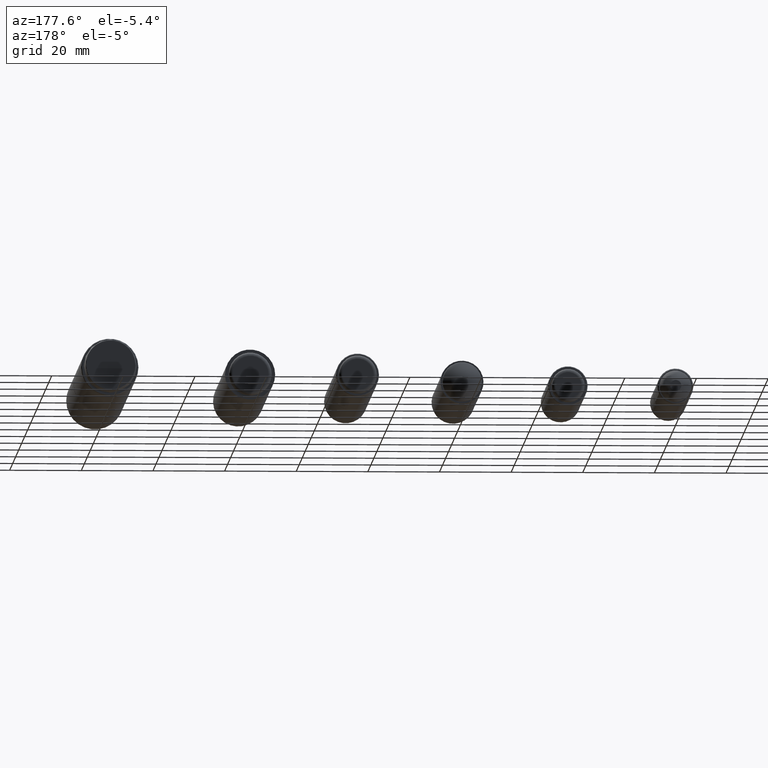
[diagram: clean part render]
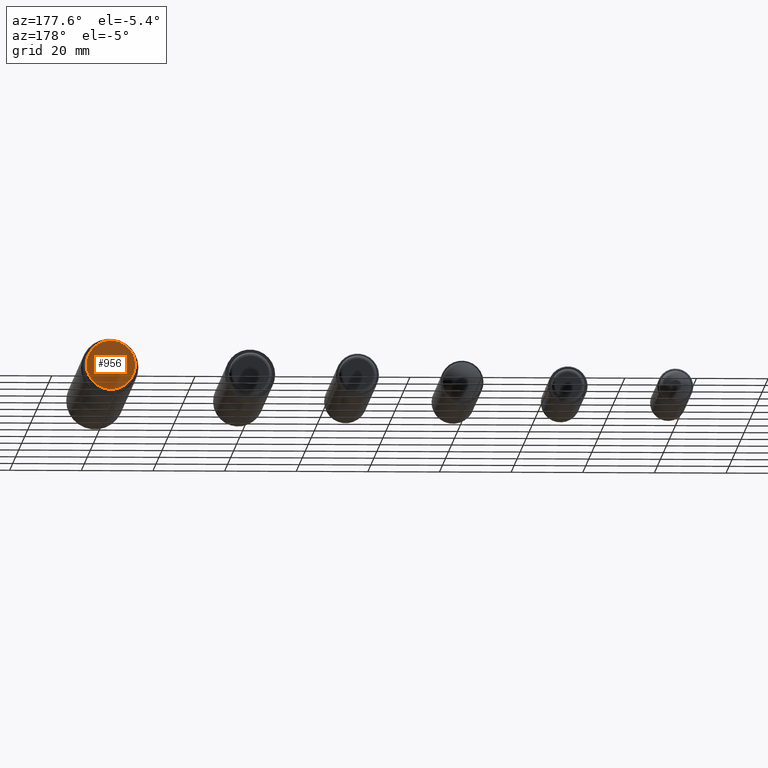
[diagram: same view with one face highlighted and labeled with its STEP entity id]
A machine part, auxiliary view. The second image highlights one B-rep face of the part: STEP entity #956.
In plain terms, the highlighted planar face has unit normal (-0, 1, -0).
Its self-contained STEP definition (entity closure, byte-faithful):
#207=PLANE('',#1139);
#341=FACE_OUTER_BOUND('',#472,.T.);
#472=EDGE_LOOP('',(#847));
#554=CIRCLE('',#1136,6.84018057072042);
#628=VERTEX_POINT('',#1804);
#703=EDGE_CURVE('',#628,#628,#554,.T.);
#847=ORIENTED_EDGE('',*,*,#703,.F.);
#956=ADVANCED_FACE('',(#341),#207,.T.);
#1136=AXIS2_PLACEMENT_3D('',#1805,#1485,#1486);
#1139=AXIS2_PLACEMENT_3D('',#1840,#1491,#1492);
#1485=DIRECTION('center_axis',(1.33226762955019E-16,-1.,0.));
#1486=DIRECTION('ref_axis',(1.,1.33226762955019E-16,0.));
#1491=DIRECTION('center_axis',(-1.33226762955019E-16,1.,0.));
#1492=DIRECTION('ref_axis',(0.,0.,1.));
#1804=CARTESIAN_POINT('',(-6.84018057072042,7.,-8.37680524152268E-16));
#1805=CARTESIAN_POINT('Origin',(-3.14696952912874E-30,7.,0.));
#1840=CARTESIAN_POINT('Origin',(0.,7.,0.));